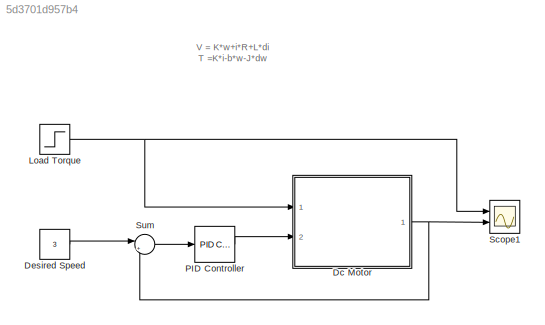
MODEL slx_5d3701d957b4
KIND model
CONFIG AbsTol = auto
CONFIG EnableMultiTasking = on
CONFIG FixedStep = auto
CONFIG MaxStep = 0.1
CONFIG MinStep = auto
CONFIG PreLoadFcn = dcMotorParams
CONFIG RelTol = 1e-3
CONFIG SampleTimeConstraint = Unconstrained
CONFIG Solver = ode45
CONFIG SolverName = ode45
CONFIG StartTime = 0.0
CONFIG StopTime = 10
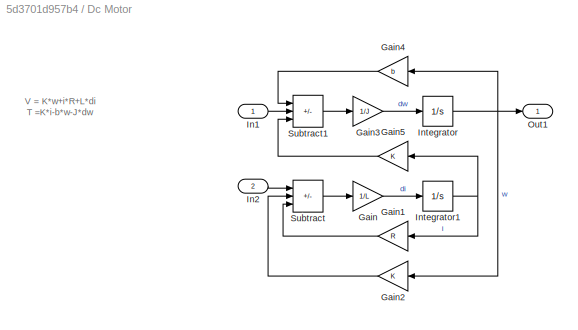
BLOCK [SubSystem] Dc Motor
  Ports = [2, 1]
  RequestExecContextInheritance = off
BLOCK [Gain] Dc Motor/Gain
  Gain = 1/L
BLOCK [Gain] Dc Motor/Gain1
  Gain = R
BLOCK [Gain] Dc Motor/Gain2
  Gain = K
BLOCK [Gain] Dc Motor/Gain3
  Gain = 1/J
BLOCK [Gain] Dc Motor/Gain4
  Gain = b
BLOCK [Gain] Dc Motor/Gain5
  Gain = K
BLOCK [Inport] Dc Motor/In1
BLOCK [Inport] Dc Motor/In2
  Port = 2
BLOCK [Integrator] Dc Motor/Integrator
  Ports = [1, 1]
BLOCK [Integrator] Dc Motor/Integrator1
  Ports = [1, 1]
BLOCK [Outport] Dc Motor/Out1
  VectorParamsAs1DForOutWhenUnconnected = off
BLOCK [Sum] Dc Motor/Subtract
  IconShape = rectangular
  Inputs = +--
  Ports = [3, 1]
BLOCK [Sum] Dc Motor/Subtract1
  IconShape = rectangular
  Inputs = --+
  Ports = [3, 1]
BLOCK [Constant] Desired Speed
  Value = 3
BLOCK [Step] Load Torque
  After = 0.1
  SampleTime = 0
  Time = 5
BLOCK [Reference] PID Controller  REF=simulink/Continuous/PID Controller
  Ports = [1, 1]
  SourceBlock = simulink/Continuous/PID Controller
  SourceProductBaseCode = SL
  SourceType = PID 1dof
BLOCK [Scope] Scope1
  Floating = off
  NumInputPorts = 2
  Ports = [2]
  ScopeSpecificationString = Simulink.scopes.TimeScopeBlockCfg('CurrentConfiguration', extmgr.ConfigurationSet(extmgr.Configuration('Core','General UI',true,'FigureColor',[1 1 1]),extmgr.Configuration('Core','Source UI',true),extmgr.Configuration('Sources','WiredSimulink',true,'DataLoggingVariableName','ScopeData1'),extmgr.Configuration('Visuals','Time Domain',true,'SerializedDisplays',{struct('MinYLimReal','-0.0125','MaxYLim...<+2287ch>
BLOCK [Sum] Sum
  Inputs = |+-
  Ports = [2, 1]
ANNOTATION (root): V = K*w+i*R+L*di T =K*i-b*w-J*dw
ANNOTATION Dc Motor: V = K*w+i*R+L*di T =K*i-b*w-J*dw
LINE Dc Motor/Gain1:1 -> Dc Motor/Subtract:3
LINE Dc Motor/Gain2:1 -> Dc Motor/Subtract:2
LINE Dc Motor/Gain3:1 -> Dc Motor/Integrator:1
LINE Dc Motor/Gain4:1 -> Dc Motor/Subtract1:1
LINE Dc Motor/Gain5:1 -> Dc Motor/Subtract1:3
LINE Dc Motor/Gain:1 -> Dc Motor/Integrator1:1
LINE Dc Motor/In1:1 -> Dc Motor/Subtract1:2
LINE Dc Motor/In2:1 -> Dc Motor/Subtract:1
NET Dc Motor/Integrator1:1 -> Dc Motor/Gain1:1, Dc Motor/Gain5:1
NET Dc Motor/Integrator:1 -> Dc Motor/Gain2:1, Dc Motor/Gain4:1, Dc Motor/Out1:1
LINE Dc Motor/Subtract1:1 -> Dc Motor/Gain3:1
LINE Dc Motor/Subtract:1 -> Dc Motor/Gain:1
NET Dc Motor:1 -> Scope1:2, Sum:2
LINE Desired Speed:1 -> Sum:1
NET Load Torque:1 -> Dc Motor:1, Scope1:1
LINE PID Controller:1 -> Dc Motor:2
LINE Sum:1 -> PID Controller:1
note: NET lines group one-source signal fan-out (src -> all destinations, sorted); 1:1 wires keep LINE
